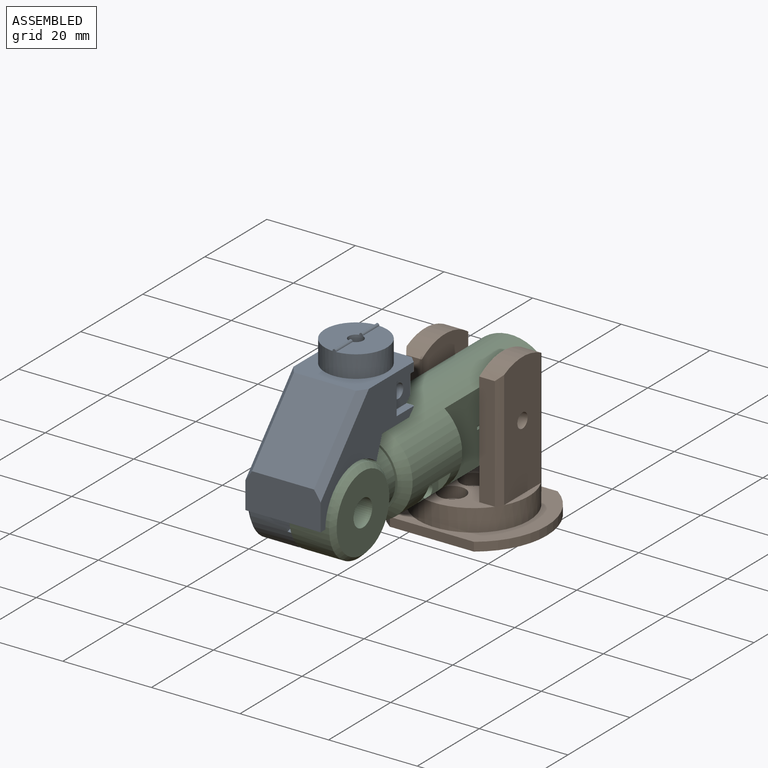
[diagram: assembled view]
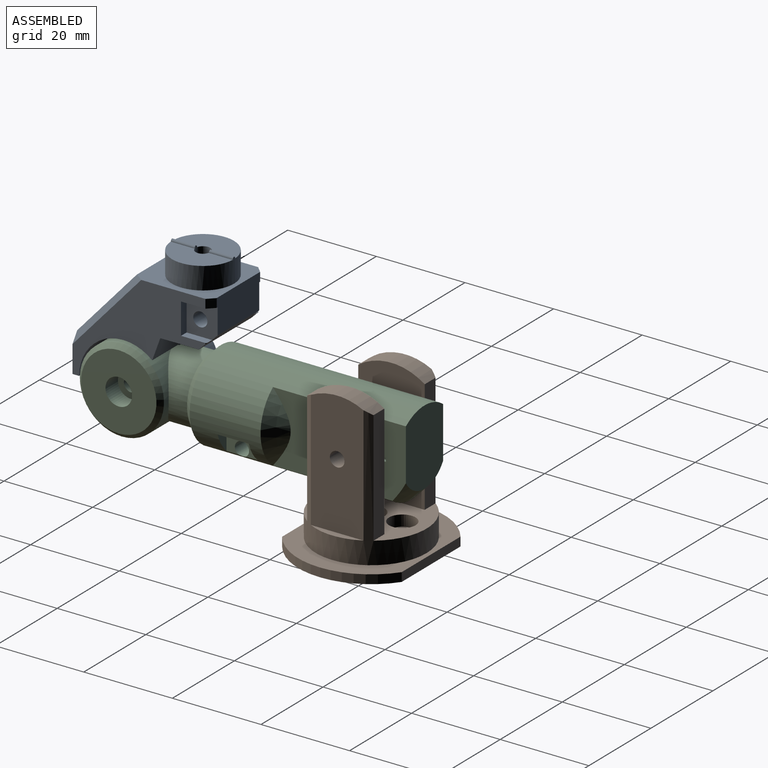
[diagram: assembled view, second angle]
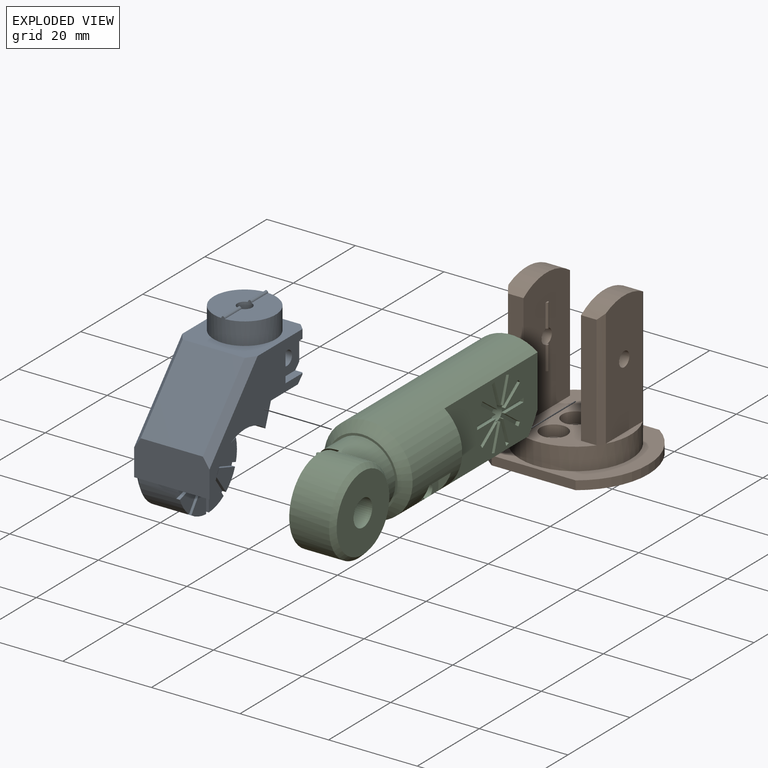
[diagram: exploded view]
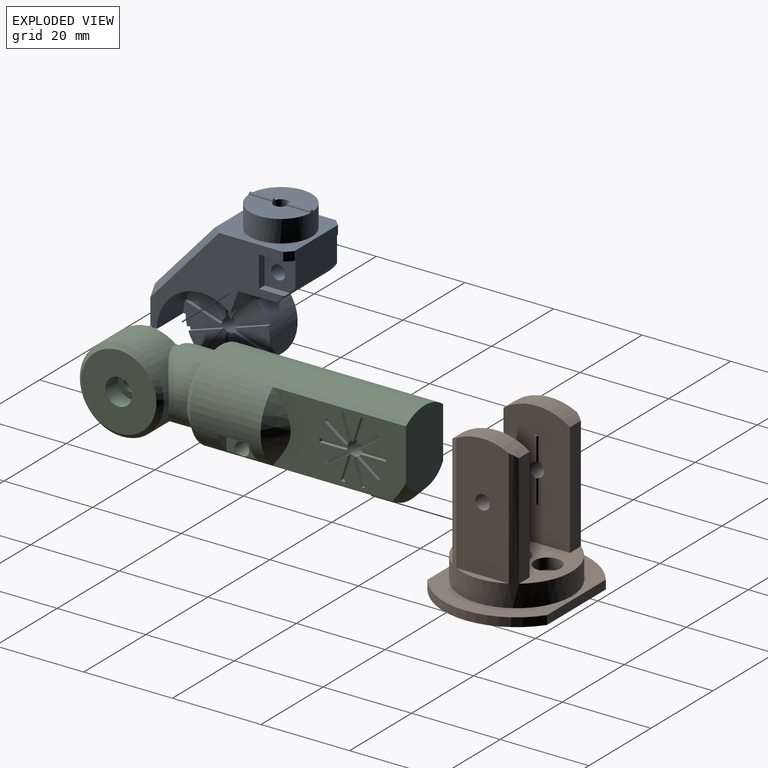
[diagram: exploded view, second angle]
ASSEMBLY  parts=3 mates=2
PART A: 105 faces, bbox 18.5x31.5x38.3 mm
  f0: plane 30x23.33mm, normal (1,0,0), area 241.2mm2, adj f3,f5,f28,f29,f30,f31,f32,f38
  f1: plane 30x23.33mm, normal (-1,0,0), area 252.4mm2, adj f3,f4,f7,f28,f30,f31,f32,f37
  f2: plane 14x7.73mm, normal (0,1,0), area 104.8mm2, adj f3,f32,f91,f92,f97,f99,f102,f103
  f3: plane 17x3mm, normal (0,0.71,-0.71), area 65.6mm2, adj f0,f1,f2,f4,f5,f31,f97,f98
  f4: plane 0.23x0.23mm, normal (-0.71,0.71,0), area 0mm2, adj f1,f3,f101
  f5: plane 0.23x0.23mm, normal (0.71,0.71,0), area 0mm2, adj f0,f3,f98
  f6: cylinder r=1.65mm len=6mm, axis (1,0,0), area 54.9mm2, adj f8,f9,f10,f11,f12,f13,f16,f18
  f7: cylinder r=9.5mm len=19mm, axis (1,0,0), area 345.2mm2, adj f1,f8,f9,f10,f11,f12,f16,f21
  f8: plane 7.94x4.76mm, normal (1,0,0), area 20.4mm2, adj f6,f7,f80,f82
  f9: plane 7.94x4.76mm, normal (1,0,0), area 20.4mm2, adj f6,f7,f74,f79
  f10: plane 7.85x5.01mm, normal (1,0,0), area 20.4mm2, adj f6,f7,f71,f76
  f11: plane 7.59x6.49mm, normal (1,0,0), area 20.4mm2, adj f6,f7,f73,f77
  f12: plane 7.59x6.9mm, normal (1,0,0), area 20.7mm2, adj f6,f7,f29,f37,f54,f70
  f13: plane 8.44x5.06mm, normal (1,0,0), area 23mm2, adj f6,f29,f58,f66
  f14: plane 0.9x0.01mm, normal (1,0,0), area 0mm2, adj f29,f68
  f15: plane 0.86x0.28mm, normal (1,0,0), area 0mm2, adj f29,f63
  f16: plane 8.35x5.16mm, normal (1,0,0), area 21.7mm2, adj f6,f7,f29,f38,f52,f64
  f17: plane 0.73x0.53mm, normal (1,0,0), area 0mm2, adj f29,f59
  f18: plane 8.06x6.9mm, normal (1,0,0), area 23mm2, adj f6,f29,f60,f62
  f19: plane 0.73x0.53mm, normal (1,0,0), area 0mm2, adj f29,f55
  f20: plane 8.44x5.06mm, normal (1,0,0), area 23mm2, adj f6,f29,f56,f67
  f21: plane 7.59x6.49mm, normal (1,0,0), area 20.4mm2, adj f6,f7,f51,f83
  f22: cylinder r=1.65mm len=13.22mm, axis (0,0,1), area 132.5mm2, adj f23,f24,f25,f27,f41,f42,f43
  f23: cylinder r=0.5mm len=5.39mm, axis (0,1,0), area 3.7mm2, adj f22,f25,f40,f42
  f24: cylinder r=0.5mm len=5.39mm, axis (0,-1,0), area 3.7mm2, adj f22,f27,f39,f41
  f25: plane 13.98x6.6mm, normal (0,0,1), area 68.4mm2, adj f22,f23,f34,f41
  f26: plane 0.8x0.01mm, normal (0,0,1), area 0mm2, adj f34,f40
  f27: plane 13.98x6.6mm, normal (0,0,1), area 68.4mm2, adj f22,f24,f34,f42
  f28: plane 17x8.33mm, normal (0,-1,0), area 138.3mm2, adj f0,f1,f33,f38,f93,f94
  f29: cylinder r=10mm len=16.5mm, axis (-1,0,0), area 193.7mm2, adj f0,f12,f13,f14,f15,f16,f17,f18
  f30: plane 17x5mm, normal (0,0.94,-0.34), area 90.5mm2, adj f0,f1,f29,f31,f37
  f31: plane 17x8.68mm, normal (0,0,-1), area 116.4mm2, adj f0,f1,f3,f30,f44,f45,f46,f47
  f32: plane 18x17mm, normal (0,0,1), area 146.8mm2, adj f0,f1,f2,f33,f34,f91,f92,f93
  f33: plane 14.99x14mm, normal (0,-0.74,0.67), area 282.5mm2, adj f28,f32,f93,f94
  f34: cylinder r=7mm len=14mm, axis (0,0,-1), area 219.9mm2, adj f25,f26,f27,f32,f35
  f35: plane 0.8x0.01mm, normal (0,0,1), area 0mm2, adj f34,f39
  f36: plane 17x17mm, normal (-1,0,0), area 195.8mm2, adj f85,f86,f87,f88,f89,f90,f95
  f37: plane 8.5x0.67mm, normal (0,1,0), area 5.7mm2, adj f1,f7,f12,f30
  f38: plane 17x2mm, normal (0,0,-1), area 29.8mm2, adj f0,f1,f7,f16,f28,f29
  f39: plane 0.8x0.49mm, normal (0,-1,0), area 0.3mm2, adj f24,f35,f41
  f40: plane 0.8x0.49mm, normal (0,1,0), area 0.3mm2, adj f23,f26,f42
  f41: cylinder r=0.5mm len=5.39mm, axis (0,1,0), area 3.7mm2, adj f22,f24,f25,f39
  f42: cylinder r=0.5mm len=5.39mm, axis (0,-1,0), area 3.7mm2, adj f22,f23,f27,f40
  f43: plane 6.93x6mm, normal (0,0,-1), area 22.6mm2, adj f22,f44,f45,f46,f47,f48,f49
  f44: plane 3x3mm, normal (-0.87,0.5,0), area 10.4mm2, adj f31,f43,f45,f49
  f45: plane 3.46x3mm, normal (0,1,0), area 10.4mm2, adj f31,f43,f44,f46
  f46: plane 3x3mm, normal (0.87,0.5,0), area 10.4mm2, adj f31,f43,f45,f47
  f47: plane 3x3mm, normal (0.87,-0.5,0), area 10.4mm2, adj f31,f43,f46,f48
  f48: plane 3.46x3mm, normal (0,-1,0), area 10.4mm2, adj f31,f43,f47,f49
  f49: plane 3x3mm, normal (-0.87,-0.5,0), area 10.4mm2, adj f31,f43,f44,f48
  f50: plane 7.79x3.3mm, normal (1,0,0), area 7.1mm2, adj f6,f7,f51,f52
  f51: plane 7.52x2.44mm, normal (0,-0.31,0.95), area 6.3mm2, adj f6,f7,f21,f50
  f52: plane 7.52x2.44mm, normal (0,0.31,-0.95), area 6.3mm2, adj f6,f7,f16,f50
  f53: plane 7.33x5.67mm, normal (1,0,0), area 7.5mm2, adj f6,f54,f55,f56
  f54: plane 6.8x4.94mm, normal (0,-0.81,0.59), area 6.7mm2, adj f6,f12,f53,f55
  f55: plane 0.8x0.73mm, normal (0,-0.59,-0.81), area 0.7mm2, adj f19,f53,f54,f56
  f56: plane 6.8x4.94mm, normal (0,0.81,-0.59), area 6.7mm2, adj f6,f20,f53,f55
  f57: plane 7.33x5.67mm, normal (1,0,0), area 7.5mm2, adj f6,f58,f59,f60
  f58: plane 6.8x4.94mm, normal (0,-0.81,-0.59), area 6.7mm2, adj f6,f13,f57,f59
  f59: plane 0.8x0.73mm, normal (0,0.59,-0.81), area 0.7mm2, adj f17,f57,f58,f60
  f60: plane 6.8x4.94mm, normal (0,0.81,0.59), area 6.7mm2, adj f6,f18,f57,f59
  f61: plane 8.27x3.45mm, normal (1,0,0), area 7.5mm2, adj f6,f62,f63,f64
  f62: plane 7.99x2.6mm, normal (0,-0.31,-0.95), area 6.7mm2, adj f6,f18,f61,f63
  f63: plane 0.86x0.8mm, normal (0,0.95,-0.31), area 0.7mm2, adj f15,f61,f62,f64
  f64: plane 7.99x2.6mm, normal (0,0.31,0.95), area 6.7mm2, adj f6,f16,f61,f63
  f65: plane 8.4x0.9mm, normal (1,0,0), area 7.5mm2, adj f6,f66,f67,f68
  f66: plane 8.4x0.8mm, normal (0,1,0), area 6.7mm2, adj f6,f13,f65,f68
  f67: plane 8.4x0.8mm, normal (0,-1,0), area 6.7mm2, adj f6,f20,f65,f68
  f68: plane 0.9x0.8mm, normal (0,0,-1), area 0.7mm2, adj f14,f65,f66,f67
  f69: plane 7.79x3.3mm, normal (1,0,0), area 7.1mm2, adj f6,f7,f70,f71
  f70: plane 7.52x2.44mm, normal (0,0.31,-0.95), area 6.3mm2, adj f6,f7,f12,f69
  f71: plane 7.52x2.44mm, normal (0,-0.31,0.95), area 6.3mm2, adj f6,f7,f10,f69
  f72: plane 6.92x5.37mm, normal (1,0,0), area 7.1mm2, adj f6,f7,f73,f74
  f73: plane 6.39x4.64mm, normal (0,-0.81,-0.59), area 6.3mm2, adj f6,f7,f11,f72
  f74: plane 6.39x4.64mm, normal (0,0.81,0.59), area 6.3mm2, adj f6,f7,f9,f72
  f75: plane 7.79x3.3mm, normal (1,0,0), area 7.1mm2, adj f6,f7,f76,f77
  f76: plane 7.52x2.44mm, normal (0,-0.31,-0.95), area 6.3mm2, adj f6,f7,f10,f75
  f77: plane 7.52x2.44mm, normal (0,0.31,0.95), area 6.3mm2, adj f6,f7,f11,f75
  f78: plane 7.91x0.9mm, normal (1,0,0), area 7.1mm2, adj f6,f7,f79,f80
  f79: plane 7.9x0.8mm, normal (0,-1,0), area 6.3mm2, adj f6,f7,f9,f78
  f80: plane 7.9x0.8mm, normal (0,1,0), area 6.3mm2, adj f6,f7,f8,f78
  f81: plane 6.92x5.37mm, normal (1,0,0), area 7.1mm2, adj f6,f7,f82,f83
  f82: plane 6.39x4.64mm, normal (0,-0.81,0.59), area 6.3mm2, adj f6,f7,f8,f81
  f83: plane 6.39x4.64mm, normal (0,0.81,-0.59), area 6.3mm2, adj f6,f7,f21,f81
  f84: plane 6.93x6mm, normal (-1,0,0), area 22.6mm2, adj f6,f85,f86,f87,f88,f89,f90
  f85: plane 4x3mm, normal (0,-0.5,-0.87), area 13.9mm2, adj f36,f84,f86,f90
  f86: plane 4x3.46mm, normal (0,-1,0), area 13.9mm2, adj f36,f84,f85,f87
  f87: plane 4x3mm, normal (0,-0.5,0.87), area 13.9mm2, adj f36,f84,f86,f88
  f88: plane 4x3mm, normal (0,0.5,0.87), area 13.9mm2, adj f36,f84,f87,f89
  f89: plane 4x3.46mm, normal (0,1,0), area 13.9mm2, adj f36,f84,f88,f90
  f90: plane 4x3mm, normal (0,0.5,-0.87), area 13.9mm2, adj f36,f84,f85,f89
  f91: plane 2x1.5mm, normal (-0.71,0.71,0), area 4.2mm2, adj f1,f2,f32,f102
  f92: plane 2x1.5mm, normal (0.71,0.71,0), area 4.2mm2, adj f0,f2,f32,f99
  f93: plane 17.24x15.52mm, normal (-0.71,-0.53,0.47), area 46mm2, adj f1,f28,f32,f33
  f94: plane 17.24x15.52mm, normal (0.71,-0.53,0.47), area 46mm2, adj f0,f28,f32,f33
  f95: cone r=9.5mm half-angle=45deg, axis (1,0,0), area 80mm2, adj f7,f36
  f96: plane 7x1.8mm, normal (0,1,0), area 12.6mm2, adj f0,f97,f98,f99
  f97: plane 7x7mm, normal (1,0,0), area 40.1mm2, adj f2,f3,f96,f98,f99,f104
  f98: plane 5.73x1.8mm, normal (0,0,1), area 10.3mm2, adj f0,f3,f5,f96,f97
  f99: plane 7x1.8mm, normal (0,0,-1), area 11.5mm2, adj f0,f2,f92,f96,f97
  f100: plane 7x1.8mm, normal (0,1,0), area 12.6mm2, adj f1,f101,f102,f103
  f101: plane 5.73x1.8mm, normal (0,0,1), area 10.3mm2, adj f1,f3,f4,f100,f103
  f102: plane 7x1.8mm, normal (0,0,-1), area 11.5mm2, adj f1,f2,f91,f100,f103
  f103: plane 7x7mm, normal (-1,0,0), area 40.1mm2, adj f2,f3,f100,f101,f102,f104
  f104: cylinder r=1.6mm len=13.4mm, axis (-1,0,0), area 134.7mm2, adj f97,f103
PART B: 49 faces, bbox 33x27x35 mm
  f0: cylinder r=12.5mm len=31.57mm, axis (0,0,1), area 586.6mm2, adj f6,f7,f8,f9,f10,f11,f13,f14
  f1: plane 28x15mm, normal (1,0,0), area 391.5mm2, adj f6,f10,f11,f12,f13,f32,f33,f34
  f2: plane 28x15mm, normal (-1,0,0), area 391.5mm2, adj f7,f13,f14,f15,f16,f28,f29,f30
  f3: cylinder r=1.6mm len=3.2mm, axis (0,0,-1), area 20.1mm2, adj f21,f26
  f4: cylinder r=1.6mm len=3.2mm, axis (0,0,-1), area 20.1mm2, adj f21,f24
  f5: cylinder r=1.6mm len=3.2mm, axis (0,0,-1), area 20.1mm2, adj f21,f22
  f6: plane 25.62x3.5mm, normal (0,-1,0), area 89.7mm2, adj f0,f1,f10,f13
  f7: plane 25.62x3.5mm, normal (0,1,0), area 89.7mm2, adj f0,f2,f13,f14
  f8: plane 28x11.87mm, normal (-1,0,0), area 318.4mm2, adj f0,f10,f12,f19
  f9: plane 28x11.87mm, normal (1,0,0), area 318.4mm2, adj f0,f14,f16,f17
  f10: cylinder r=13mm len=15mm, axis (-1,0,0), area 70.2mm2, adj f0,f1,f6,f8,f11
  f11: plane 25.62x3.5mm, normal (0,1,0), area 89.7mm2, adj f0,f1,f10,f13
  f12: cylinder r=1.65mm len=4.5mm, axis (1,0,0), area 46.7mm2, adj f1,f8
  f13: plane 25x20mm, normal (0,0,1), area 250mm2, adj f0,f1,f2,f6,f7,f11,f15,f23
  f14: cylinder r=13mm len=15mm, axis (-1,0,0), area 70.2mm2, adj f0,f2,f7,f9,f15
  f15: plane 25.62x3.5mm, normal (0,-1,0), area 89.7mm2, adj f0,f2,f13,f14
  f16: cylinder r=1.65mm len=4.5mm, axis (1,0,0), area 46.7mm2, adj f2,f9
  f17: plane 11.87x1.5mm, normal (0,0,1), area 12mm2, adj f0,f9
  f18: plane 33x27mm, normal (0,0,-1), area 444.6mm2, adj f20,f44,f45,f46,f47
  f19: plane 11.87x1.5mm, normal (0,0,1), area 12mm2, adj f0,f8
  f20: cylinder r=10.3mm len=20.6mm, axis (0,0,-1), area 161.8mm2, adj f18,f21
  f21: plane 20.6x20.6mm, normal (0,0,-1), area 309.2mm2, adj f3,f4,f5,f20
  f22: plane 6x6mm, normal (0,0,1), area 20.2mm2, adj f5,f23
  f23: cylinder r=3mm len=6mm, axis (0,0,1), area 47.1mm2, adj f13,f22
  f24: plane 6x6mm, normal (0,0,1), area 20.2mm2, adj f4,f25
  f25: cylinder r=3mm len=6mm, axis (0,0,1), area 47.1mm2, adj f13,f24
  f26: plane 6x6mm, normal (0,0,1), area 20.2mm2, adj f3,f27
  f27: cylinder r=3mm len=6mm, axis (0,0,1), area 47.1mm2, adj f13,f26
  f28: plane 0.8x0.39mm, normal (0,0,-1), area 0.2mm2, adj f2,f42,f43
  f29: plane 0.8x0.39mm, normal (0,0,1), area 0.2mm2, adj f2,f42,f43
  f30: plane 0.8x0.39mm, normal (0,0,1), area 0.2mm2, adj f2,f40,f41
  f31: plane 0.8x0.39mm, normal (0,0,-1), area 0.2mm2, adj f2,f40,f41
  f32: plane 0.8x0.39mm, normal (0,0,-1), area 0.2mm2, adj f1,f38,f39
  f33: plane 0.8x0.39mm, normal (0,0,1), area 0.2mm2, adj f1,f38,f39
  f34: plane 0.8x0.39mm, normal (0,0,-1), area 0.2mm2, adj f1,f36,f37
  f35: plane 0.8x0.39mm, normal (0,0,1), area 0.2mm2, adj f1,f36,f37
  f36: cylinder r=0.5mm len=5.34mm, axis (0,0,1), area 3.2mm2, adj f1,f34,f35,f37
  f37: cylinder r=0.5mm len=5.34mm, axis (0,0,1), area 3.2mm2, adj f1,f34,f35,f36
  f38: cylinder r=0.5mm len=5.34mm, axis (0,0,-1), area 3.2mm2, adj f1,f32,f33,f39
  f39: cylinder r=0.5mm len=5.34mm, axis (0,0,-1), area 3.2mm2, adj f1,f32,f33,f38
  f40: cylinder r=0.5mm len=5.34mm, axis (0,0,-1), area 3.2mm2, adj f2,f30,f31,f41
  f41: cylinder r=0.5mm len=5.34mm, axis (0,0,-1), area 3.2mm2, adj f2,f30,f31,f40
  f42: cylinder r=0.5mm len=5.34mm, axis (0,0,1), area 3.2mm2, adj f2,f28,f29,f43
  f43: cylinder r=0.5mm len=5.34mm, axis (0,0,1), area 3.2mm2, adj f2,f28,f29,f42
  f44: plane 18.97x2mm, normal (0,-1,0), area 37.9mm2, adj f18,f45,f47,f48
  f45: cylinder r=16.5mm len=27mm, axis (0,0,-1), area 63.2mm2, adj f18,f44,f46,f48
  f46: plane 18.97x2mm, normal (0,1,0), area 37.9mm2, adj f18,f45,f47,f48
  f47: cylinder r=16.5mm len=27mm, axis (0,0,-1), area 63.2mm2, adj f18,f44,f46,f48
  f48: plane 33x27mm, normal (0,0,1), area 287mm2, adj f0,f44,f45,f46,f47
PART C: 119 faces, bbox 20x71.5x20 mm
  f0: plane 30x16mm, normal (1,0,0), area 372.1mm2, adj f2,f4,f5,f26,f67,f68,f69,f71
  f1: plane 30x16mm, normal (-1,0,0), area 372.1mm2, adj f2,f4,f5,f26,f27,f28,f29,f31
  f2: cylinder r=1.65mm len=12mm, axis (-1,0,0), area 109.8mm2, adj f0,f1,f27,f29,f30,f31,f33,f34
  f3: cylinder r=1.65mm len=6mm, axis (1,0,0), area 62.2mm2, adj f6,f8,f24
  f4: cylinder r=10mm len=46mm, axis (0,1,0), area 1663.4mm2, adj f0,f1,f5,f13,f26,f108,f109,f110
  f5: plane 17x12mm, normal (0,1,0), area 184.4mm2, adj f0,f1,f4,f26
  f6: plane 18.98x10mm, normal (-1,0,0), area 139.8mm2, adj f3,f9,f11,f14,f16,f18,f21,f22
  f7: plane 0.8x0.01mm, normal (-1,0,0), area 0mm2, adj f11,f19
  f8: plane 18.98x9.5mm, normal (-1,0,0), area 131.2mm2, adj f3,f11,f16,f18,f20,f23
  f9: cylinder r=7.5mm len=15mm, axis (0,1,0), area 278.8mm2, adj f6,f10,f11,f14
  f10: plane 16x16mm, normal (0,-1,0), area 24.3mm2, adj f9,f13
  f11: cylinder r=9.5mm len=19mm, axis (-1,0,0), area 439.5mm2, adj f6,f7,f8,f9,f15,f107
  f12: plane 17x17mm, normal (1,0,0), area 198.7mm2, adj f25,f107
  f13: cone r=8mm half-angle=45deg, axis (0,1,0), area 159.9mm2, adj f4,f10
  f14: cylinder r=10mm len=15mm, axis (1,0,0), area 96.5mm2, adj f6,f9
  f15: plane 0.8x0.01mm, normal (-1,0,0), area 0mm2, adj f11,f17
  f16: plane 0.8x0.49mm, normal (0,0,-1), area 0.3mm2, adj f6,f8,f22,f23
  f17: plane 0.8x0.49mm, normal (0,0,1), area 0.3mm2, adj f15,f22,f23
  f18: plane 0.8x0.49mm, normal (0,0,1), area 0.3mm2, adj f6,f8,f20,f21
  f19: plane 0.8x0.49mm, normal (0,0,-1), area 0.3mm2, adj f7,f20,f21
  f20: cylinder r=0.5mm len=7.84mm, axis (0,0,-1), area 5.4mm2, adj f8,f18,f19,f21
  f21: cylinder r=0.5mm len=7.84mm, axis (0,0,1), area 5.4mm2, adj f6,f18,f19,f20
  f22: cylinder r=0.5mm len=7.84mm, axis (0,0,1), area 5.4mm2, adj f6,f16,f17,f23
  f23: cylinder r=0.5mm len=7.84mm, axis (0,0,-1), area 5.4mm2, adj f8,f16,f17,f22
  f24: plane 6x6mm, normal (1,0,0), area 19.7mm2, adj f3,f25
  f25: cylinder r=3mm len=6mm, axis (1,0,0), area 75.4mm2, adj f12,f24
  f26: cone r=10mm half-angle=45deg, axis (0,-1,0), area 56.9mm2, adj f0,f1,f4,f5
  f27: plane 5.9x0.8mm, normal (0,0,-1), area 4.7mm2, adj f1,f2,f28,f30
  f28: plane 0.9x0.8mm, normal (0,-1,0), area 0.7mm2, adj f1,f27,f29,f30
  f29: plane 5.9x0.8mm, normal (0,0,1), area 4.7mm2, adj f1,f2,f28,f30
  f30: plane 5.9x0.9mm, normal (-1,0,0), area 5.3mm2, adj f2,f27,f28,f29
  f31: plane 4.77x3.47mm, normal (0,0.59,-0.81), area 4.7mm2, adj f1,f2,f32,f34
  f32: plane 0.8x0.73mm, normal (0,-0.81,-0.59), area 0.7mm2, adj f1,f31,f33,f34
  f33: plane 4.77x3.47mm, normal (0,-0.59,0.81), area 4.7mm2, adj f1,f2,f32,f34
  f34: plane 5.3x4.2mm, normal (-1,0,0), area 5.3mm2, adj f2,f31,f32,f33
  f35: plane 5.9x0.8mm, normal (0,0,1), area 4.7mm2, adj f1,f2,f36,f38
  f36: plane 0.9x0.8mm, normal (0,1,0), area 0.7mm2, adj f1,f35,f37,f38
  f37: plane 5.9x0.8mm, normal (0,0,-1), area 4.7mm2, adj f1,f2,f36,f38
  f38: plane 5.9x0.9mm, normal (-1,0,0), area 5.3mm2, adj f2,f35,f36,f37
  f39: plane 4.77x3.47mm, normal (0,0.59,0.81), area 4.7mm2, adj f1,f2,f40,f42
  f40: plane 0.8x0.73mm, normal (0,0.81,-0.59), area 0.7mm2, adj f1,f39,f41,f42
  f41: plane 4.77x3.47mm, normal (0,-0.59,-0.81), area 4.7mm2, adj f1,f2,f40,f42
  f42: plane 5.3x4.2mm, normal (-1,0,0), area 5.3mm2, adj f2,f39,f40,f41
  f43: plane 5.61x1.82mm, normal (0,0.95,0.31), area 4.7mm2, adj f1,f2,f44,f46
  f44: plane 0.86x0.8mm, normal (0,0.31,-0.95), area 0.7mm2, adj f1,f43,f45,f46
  f45: plane 5.61x1.82mm, normal (0,-0.95,-0.31), area 4.7mm2, adj f1,f2,f44,f46
  f46: plane 5.89x2.68mm, normal (-1,0,0), area 5.3mm2, adj f2,f43,f44,f45
  f47: plane 5.61x1.82mm, normal (0,0.95,-0.31), area 4.7mm2, adj f1,f2,f48,f50
  f48: plane 0.86x0.8mm, normal (0,-0.31,-0.95), area 0.7mm2, adj f1,f47,f49,f50
  f49: plane 5.61x1.82mm, normal (0,-0.95,0.31), area 4.7mm2, adj f1,f2,f48,f50
  f50: plane 5.89x2.68mm, normal (-1,0,0), area 5.3mm2, adj f2,f47,f48,f49
  f51: plane 5.61x1.82mm, normal (0,-0.95,0.31), area 4.7mm2, adj f1,f2,f52,f54
  f52: plane 0.86x0.8mm, normal (0,0.31,0.95), area 0.7mm2, adj f1,f51,f53,f54
  f53: plane 5.61x1.82mm, normal (0,0.95,-0.31), area 4.7mm2, adj f1,f2,f52,f54
  f54: plane 5.89x2.68mm, normal (-1,0,0), area 5.3mm2, adj f2,f51,f52,f53
  f55: plane 4.77x3.47mm, normal (0,-0.59,0.81), area 4.7mm2, adj f1,f2,f56,f58
  f56: plane 0.8x0.73mm, normal (0,0.81,0.59), area 0.7mm2, adj f1,f55,f57,f58
  f57: plane 4.77x3.47mm, normal (0,0.59,-0.81), area 4.7mm2, adj f1,f2,f56,f58
  f58: plane 5.3x4.2mm, normal (-1,0,0), area 5.3mm2, adj f2,f55,f56,f57
  f59: plane 4.77x3.47mm, normal (0,-0.59,-0.81), area 4.7mm2, adj f1,f2,f60,f62
  f60: plane 0.8x0.73mm, normal (0,-0.81,0.59), area 0.7mm2, adj f1,f59,f61,f62
  f61: plane 4.77x3.47mm, normal (0,0.59,0.81), area 4.7mm2, adj f1,f2,f60,f62
  f62: plane 5.3x4.2mm, normal (-1,0,0), area 5.3mm2, adj f2,f59,f60,f61
  f63: plane 5.61x1.82mm, normal (0,-0.95,-0.31), area 4.7mm2, adj f1,f2,f64,f66
  f64: plane 0.86x0.8mm, normal (0,-0.31,0.95), area 0.7mm2, adj f1,f63,f65,f66
  f65: plane 5.61x1.82mm, normal (0,0.95,0.31), area 4.7mm2, adj f1,f2,f64,f66
  f66: plane 5.89x2.68mm, normal (-1,0,0), area 5.3mm2, adj f2,f63,f64,f65
  f67: plane 5.9x0.8mm, normal (0,0,1), area 4.7mm2, adj f0,f2,f68,f70
  f68: plane 0.9x0.8mm, normal (0,-1,0), area 0.7mm2, adj f0,f67,f69,f70
  f69: plane 5.9x0.8mm, normal (0,0,-1), area 4.7mm2, adj f0,f2,f68,f70
  f70: plane 5.9x0.9mm, normal (1,0,0), area 5.3mm2, adj f2,f67,f68,f69
  f71: plane 4.77x3.47mm, normal (0,-0.59,-0.81), area 4.7mm2, adj f0,f2,f73,f74
  f72: plane 4.77x3.47mm, normal (0,0.59,0.81), area 4.7mm2, adj f0,f2,f73,f74
  f73: plane 0.8x0.73mm, normal (0,-0.81,0.59), area 0.7mm2, adj f0,f71,f72,f74
  f74: plane 5.3x4.2mm, normal (1,0,0), area 5.3mm2, adj f2,f71,f72,f73
  f75: plane 5.9x0.8mm, normal (0,0,1), area 4.7mm2, adj f0,f2,f77,f78
  f76: plane 5.9x0.8mm, normal (0,0,-1), area 4.7mm2, adj f0,f2,f77,f78
  f77: plane 0.9x0.8mm, normal (0,1,0), area 0.7mm2, adj f0,f75,f76,f78
  f78: plane 5.9x0.9mm, normal (1,0,0), area 5.3mm2, adj f2,f75,f76,f77
  f79: plane 4.77x3.47mm, normal (0,-0.59,0.81), area 4.7mm2, adj f0,f2,f81,f82
  f80: plane 4.77x3.47mm, normal (0,0.59,-0.81), area 4.7mm2, adj f0,f2,f81,f82
  f81: plane 0.8x0.73mm, normal (0,0.81,0.59), area 0.7mm2, adj f0,f79,f80,f82
  f82: plane 5.3x4.2mm, normal (1,0,0), area 5.3mm2, adj f2,f79,f80,f81
  f83: plane 5.61x1.82mm, normal (0,-0.95,0.31), area 4.7mm2, adj f0,f2,f85,f86
  f84: plane 5.61x1.82mm, normal (0,0.95,-0.31), area 4.7mm2, adj f0,f2,f85,f86
  f85: plane 0.86x0.8mm, normal (0,0.31,0.95), area 0.7mm2, adj f0,f83,f84,f86
  f86: plane 5.89x2.68mm, normal (1,0,0), area 5.3mm2, adj f2,f83,f84,f85
  f87: plane 5.61x1.82mm, normal (0,-0.95,-0.31), area 4.7mm2, adj f0,f2,f89,f90
  f88: plane 5.61x1.82mm, normal (0,0.95,0.31), area 4.7mm2, adj f0,f2,f89,f90
  f89: plane 0.86x0.8mm, normal (0,-0.31,0.95), area 0.7mm2, adj f0,f87,f88,f90
  f90: plane 5.89x2.68mm, normal (1,0,0), area 5.3mm2, adj f2,f87,f88,f89
  f91: plane 5.61x1.82mm, normal (0,0.95,0.31), area 4.7mm2, adj f0,f2,f93,f94
  f92: plane 5.61x1.82mm, normal (0,-0.95,-0.31), area 4.7mm2, adj f0,f2,f93,f94
  f93: plane 0.86x0.8mm, normal (0,0.31,-0.95), area 0.7mm2, adj f0,f91,f92,f94
  f94: plane 5.89x2.68mm, normal (1,0,0), area 5.3mm2, adj f2,f91,f92,f93
  f95: plane 4.77x3.47mm, normal (0,0.59,0.81), area 4.7mm2, adj f0,f2,f97,f98
  f96: plane 4.77x3.47mm, normal (0,-0.59,-0.81), area 4.7mm2, adj f0,f2,f97,f98
  f97: plane 0.8x0.73mm, normal (0,0.81,-0.59), area 0.7mm2, adj f0,f95,f96,f98
  f98: plane 5.3x4.2mm, normal (1,0,0), area 5.3mm2, adj f2,f95,f96,f97
  f99: plane 4.77x3.47mm, normal (0,0.59,-0.81), area 4.7mm2, adj f0,f2,f101,f102
  f100: plane 4.77x3.47mm, normal (0,-0.59,0.81), area 4.7mm2, adj f0,f2,f101,f102
  f101: plane 0.8x0.73mm, normal (0,-0.81,-0.59), area 0.7mm2, adj f0,f99,f100,f102
  f102: plane 5.3x4.2mm, normal (1,0,0), area 5.3mm2, adj f2,f99,f100,f101
  f103: plane 5.61x1.82mm, normal (0,0.95,-0.31), area 4.7mm2, adj f0,f2,f105,f106
  f104: plane 5.61x1.82mm, normal (0,-0.95,0.31), area 4.7mm2, adj f0,f2,f105,f106
  f105: plane 0.86x0.8mm, normal (0,-0.31,-0.95), area 0.7mm2, adj f0,f103,f104,f106
  f106: plane 5.89x2.68mm, normal (1,0,0), area 5.3mm2, adj f2,f103,f104,f105
  f107: cone r=8.5mm half-angle=45deg, axis (-1,0,0), area 80mm2, adj f11,f12
  f108: cone r=10mm half-angle=45deg, axis (0,-1,0), area 63.3mm2, adj f1,f4
  f109: cone r=10mm half-angle=45deg, axis (0,-1,0), area 63.3mm2, adj f0,f4
  f110: plane 7x2.84mm, normal (0,0,-1), area 19.9mm2, adj f4,f111,f112,f113
  f111: plane 7x4.42mm, normal (-1,0,0), area 23.3mm2, adj f4,f110,f112,f113,f118
  f112: plane 4.42x2.84mm, normal (0,1,0), area 7.5mm2, adj f4,f110,f111
  f113: plane 4.42x2.84mm, normal (0,-1,0), area 7.5mm2, adj f4,f110,f111
  f114: plane 7x2.84mm, normal (0,0,-1), area 19.9mm2, adj f4,f115,f116,f117
  f115: plane 7x4.42mm, normal (1,0,0), area 23.3mm2, adj f4,f114,f116,f117,f118
  f116: plane 4.42x2.84mm, normal (0,1,0), area 7.5mm2, adj f4,f114,f115
  f117: plane 4.42x2.84mm, normal (0,-1,0), area 7.5mm2, adj f4,f114,f115
  f118: cylinder r=1.6mm len=13.4mm, axis (1,0,0), area 133.9mm2, adj f4,f111,f115
PLACE A t=(27.06,61.84,26.17)mm
PLACE B t=(27.06,61.84,26.17)mm
PLACE C t=(27.06,61.84,26.17)mm
MATE revolute A.f7 <-> C.f11  axis (1,0,0) through (27.06,23.84,26.17)mm
MATE revolute C.f2 <-> B.f12  axis (1,0,0) through (33.06,73.84,26.17)mm
